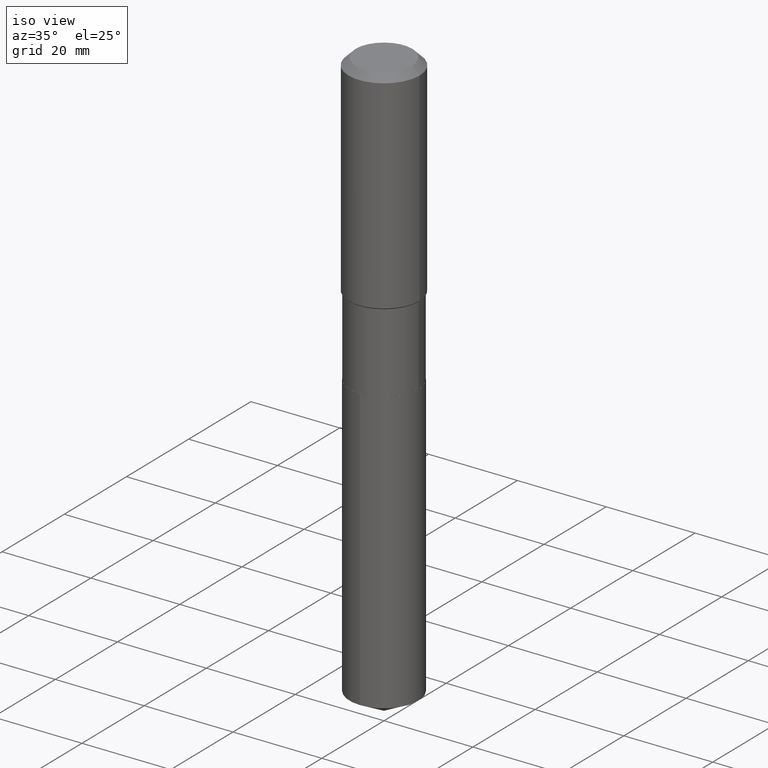
[diagram: clean part render]
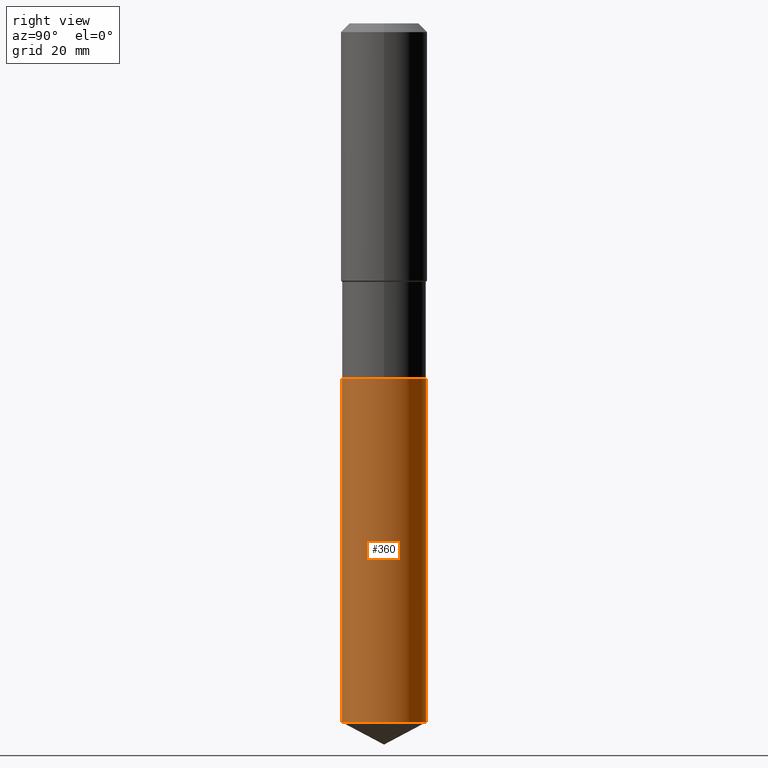
[diagram: tour spotlight — one face highlighted and labeled with its STEP entity id]
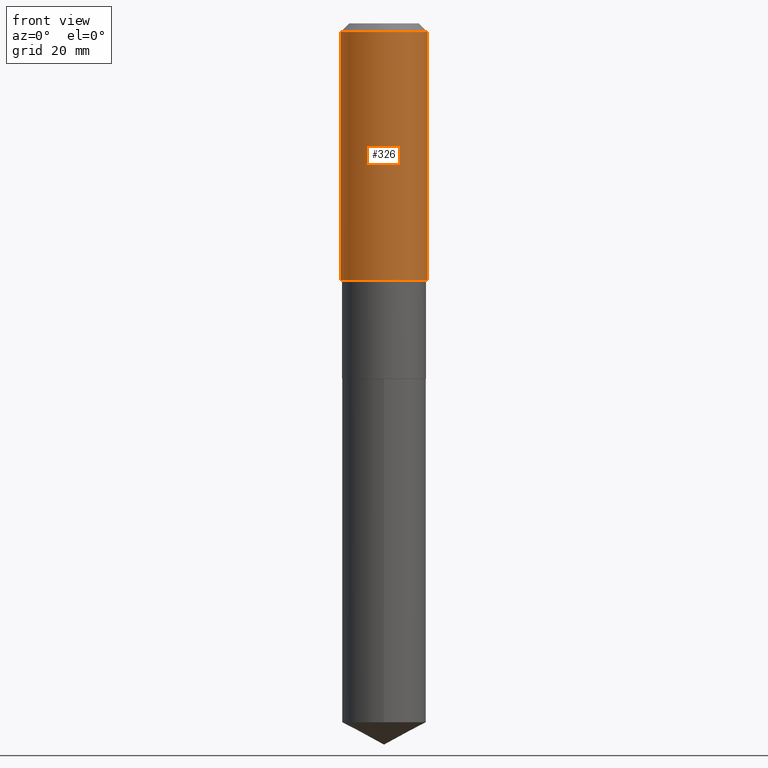
[diagram: tour spotlight — one face highlighted and labeled with its STEP entity id]
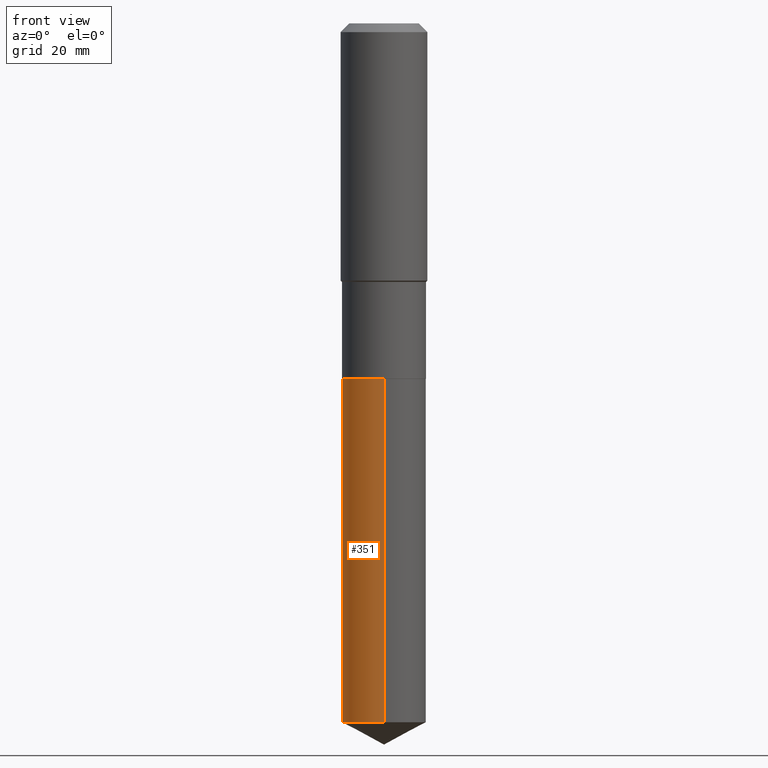
[diagram: tour spotlight — one face highlighted and labeled with its STEP entity id]
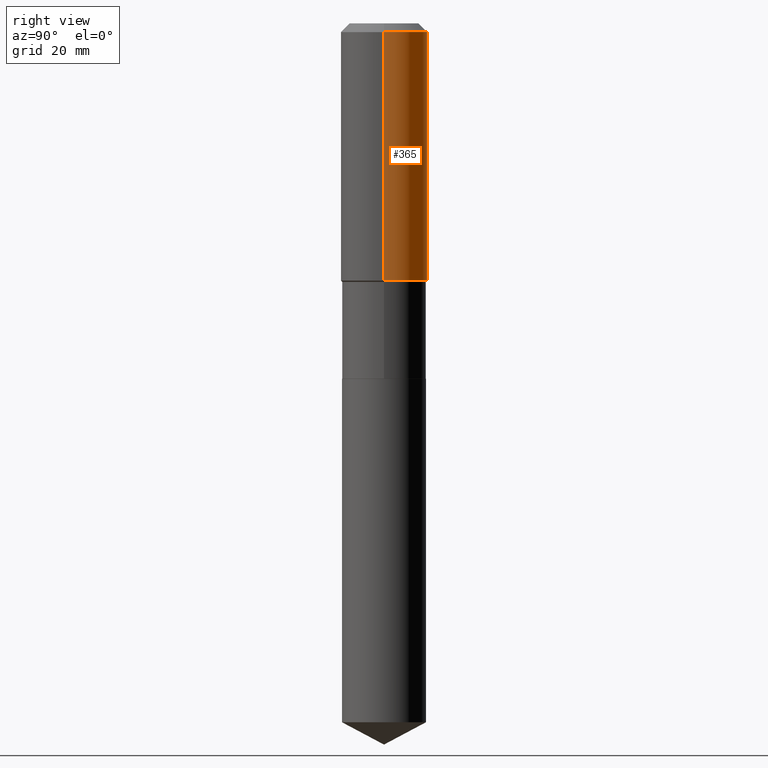
[diagram: tour spotlight — one face highlighted and labeled with its STEP entity id]
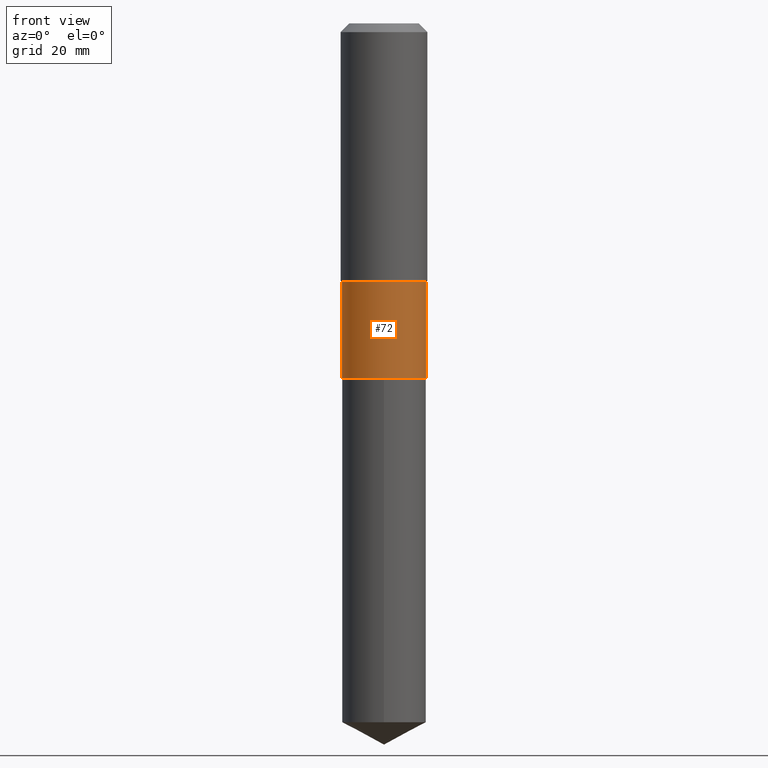
[diagram: tour spotlight — one face highlighted and labeled with its STEP entity id]
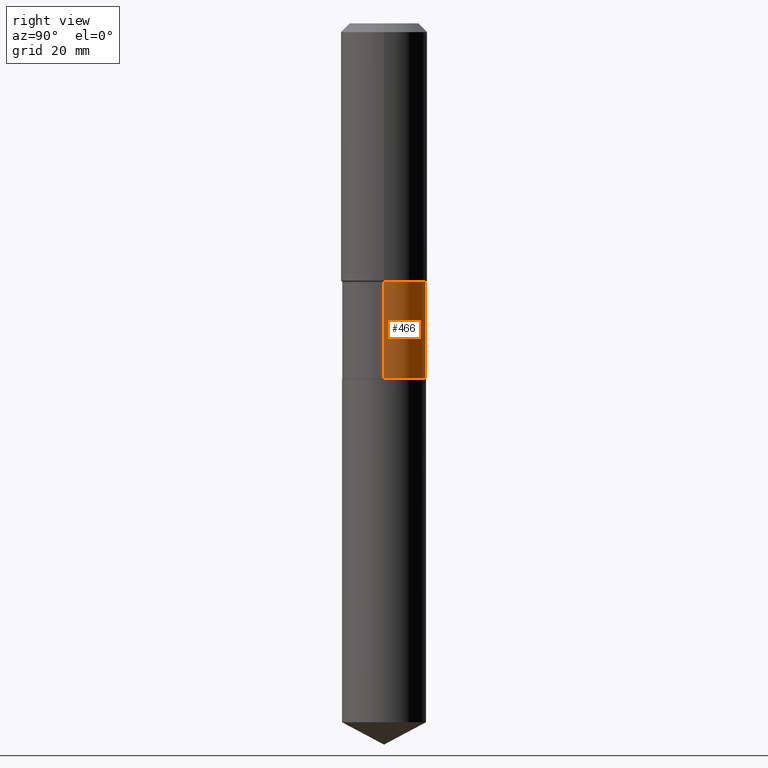
[diagram: tour spotlight — one face highlighted and labeled with its STEP entity id]
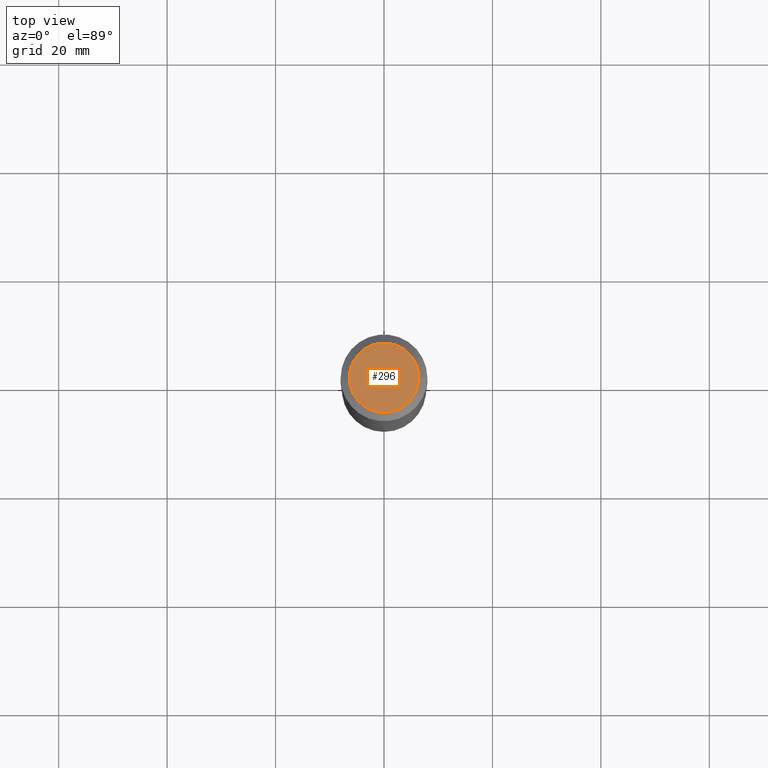
[diagram: tour spotlight — one face highlighted and labeled with its STEP entity id]
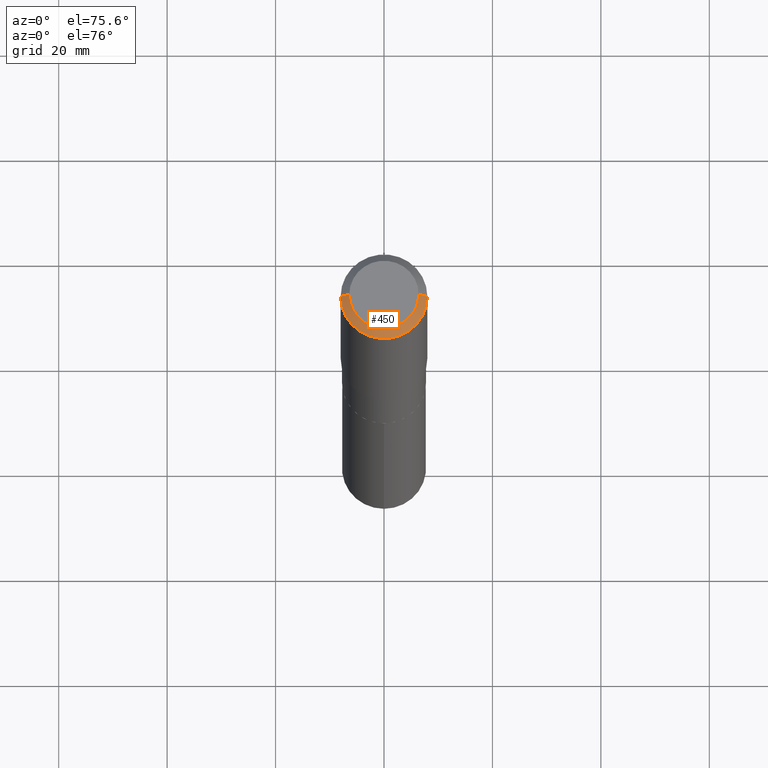
[diagram: tour spotlight — one face highlighted and labeled with its STEP entity id]
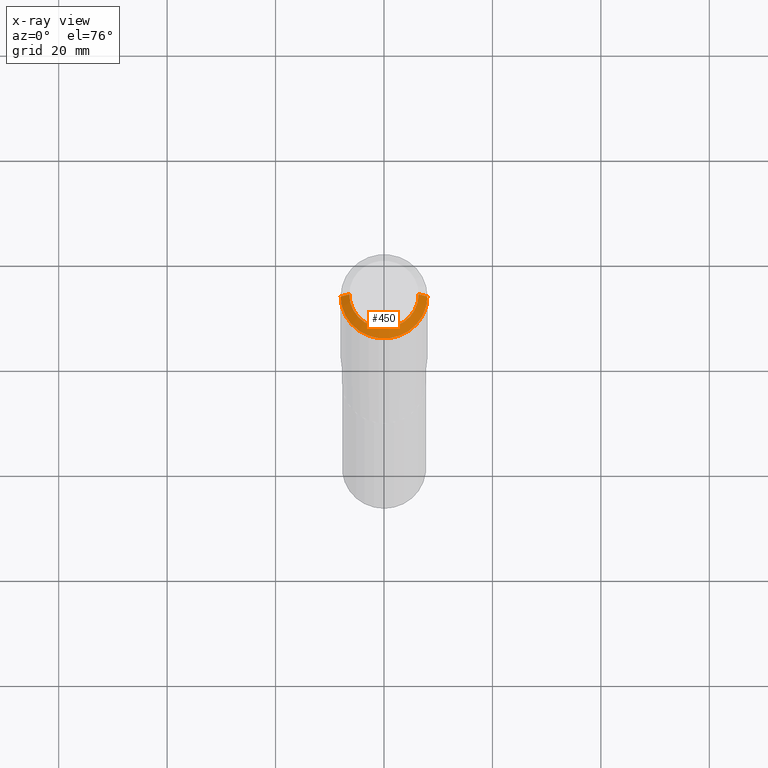
[diagram: x-ray of the same camera — body ghosted, this tour face saturated]
A machine part: a face-by-face anatomy tour. The part has 17 B-rep faces; the first image is the clean iso view, then the 8 largest visible faces are spotlighted one at a time (largest first), each with its STEP entity span.

Face 1 — right view, entity #360. In plain terms, the highlighted cylindrical surface (partial cylindrical patch) has radius 7.7495 mm, axis along (-0, 0, 1).
Definition (entity closure, byte-faithful):
#30 = ORIENTED_EDGE ( 'NONE', *, *, #319, .T. ) ;
#54 = ORIENTED_EDGE ( 'NONE', *, *, #385, .F. ) ;
#59 = CARTESIAN_POINT ( 'NONE',  ( 2.167865886804128256E-15, 0.3050999999999909895, -2.578700000000000880 ) ) ;
#66 = VECTOR ( 'NONE', #101, 39.37007874015748143 ) ;
#67 = VERTEX_POINT ( 'NONE', #286 ) ;
#101 = DIRECTION ( 'NONE',  ( -2.445282767120044128E-29, 3.491747757373043881E-15, 1.000000000000000000 ) ) ;
#119 = EDGE_CURVE ( 'NONE', #67, #277, #133, .T. ) ;
#133 = LINE ( 'NONE', #59, #456 ) ;
#148 = CARTESIAN_POINT ( 'NONE',  ( 2.167865886804189787E-15, 0.3050999999999909895, -2.578700000000000880 ) ) ;
#154 = ORIENTED_EDGE ( 'NONE', *, *, #262, .F. ) ;
#159 = CARTESIAN_POINT ( 'NONE',  ( 6.306130410509611898E-29, -9.003482928474819860E-15, -2.578699999999999992 ) ) ;
#164 = FACE_OUTER_BOUND ( 'NONE', #422, .T. ) ;
#175 = AXIS2_PLACEMENT_3D ( 'NONE', #469, #317, #423 ) ;
#179 = LINE ( 'NONE', #451, #66 ) ;
#195 = DIRECTION ( 'NONE',  ( -2.445282767120044128E-29, 3.491747757373043881E-15, 1.000000000000000000 ) ) ;
#230 = ORIENTED_EDGE ( 'NONE', *, *, #119, .T. ) ;
#234 = CARTESIAN_POINT ( 'NONE',  ( 6.306130410509611898E-29, -9.003482928474819860E-15, -2.578699999999999992 ) ) ;
#252 = CIRCLE ( 'NONE', #175, 0.3050999999999999268 ) ;
#262 = EDGE_CURVE ( 'NONE', #468, #419, #179, .T. ) ;
#271 = CARTESIAN_POINT ( 'NONE',  ( -2.130501912962016366E-15, -0.3051000000000089751, -2.578699999999999104 ) ) ;
#277 = VERTEX_POINT ( 'NONE', #148 ) ;
#286 = CARTESIAN_POINT ( 'NONE',  ( 2.167865886804188604E-15, 0.3050999999999821632, -5.073975452400085295 ) ) ;
#312 = DIRECTION ( 'NONE',  ( -6.982962677686265133E-15, -1.000000000000000000, 3.581577179500837048E-15 ) ) ;
#317 = DIRECTION ( 'NONE',  ( -2.445282767120044128E-29, 3.491747757373043881E-15, 1.000000000000000000 ) ) ;
#319 = EDGE_CURVE ( 'NONE', #468, #67, #252, .T. ) ;
#360 = ADVANCED_FACE ( 'NONE', ( #164 ), #390, .T. ) ;
#384 = DIRECTION ( 'NONE',  ( -6.982962677686265133E-15, -1.000000000000000000, 3.581577179500837048E-15 ) ) ;
#385 = EDGE_CURVE ( 'NONE', #419, #277, #387, .T. ) ;
#387 = CIRCLE ( 'NONE', #427, 0.3050999999999999823 ) ;
#390 = CYLINDRICAL_SURFACE ( 'NONE', #487, 0.3050999999999999823 ) ;
#419 = VERTEX_POINT ( 'NONE', #271 ) ;
#422 = EDGE_LOOP ( 'NONE', ( #30, #230, #54, #154 ) ) ;
#423 = DIRECTION ( 'NONE',  ( -6.982962677686265133E-15, -1.000000000000000000, 3.581577179500837836E-15 ) ) ;
#427 = AXIS2_PLACEMENT_3D ( 'NONE', #234, #465, #384 ) ;
#451 = CARTESIAN_POINT ( 'NONE',  ( -2.130501912962016366E-15, -0.3051000000000089751, -2.578699999999999104 ) ) ;
#456 = VECTOR ( 'NONE', #472, 39.37007874015748143 ) ;
#465 = DIRECTION ( 'NONE',  ( -2.445282767120044128E-29, 3.491747757373043881E-15, 1.000000000000000000 ) ) ;
#468 = VERTEX_POINT ( 'NONE', #483 ) ;
#469 = CARTESIAN_POINT ( 'NONE',  ( 1.240778447348120956E-28, -1.771635539342082338E-14, -5.073975452400084407 ) ) ;
#472 = DIRECTION ( 'NONE',  ( -2.445282767120044128E-29, 3.491747757373043881E-15, 1.000000000000000000 ) ) ;
#483 = CARTESIAN_POINT ( 'NONE',  ( -2.130501912961955229E-15, -0.3051000000000176349, -5.073975452400083519 ) ) ;
#487 = AXIS2_PLACEMENT_3D ( 'NONE', #159, #195, #312 ) ;

Face 2 — front view, entity #326. In plain terms, the highlighted cylindrical surface (partial cylindrical patch) has radius 7.9997 mm, axis along (-0, 0, 1).
Definition (entity closure, byte-faithful):
#31 = CARTESIAN_POINT ( 'NONE',  ( -0.3149500000000001743, 2.237854346276436774E-15, -1.549218606675783237E-29 ) ) ;
#39 = AXIS2_PLACEMENT_3D ( 'NONE', #314, #357, #155 ) ;
#60 = CARTESIAN_POINT ( 'NONE',  ( 1.540400801016026329E-30, -2.199284095337310135E-16, -0.06299000000000036514 ) ) ;
#61 = AXIS2_PLACEMENT_3D ( 'NONE', #60, #214, #380 ) ;
#79 = CARTESIAN_POINT ( 'NONE',  ( -0.3149500000000002298, -4.281265035544543144E-15, -1.867150000000000087 ) ) ;
#80 = ORIENTED_EDGE ( 'NONE', *, *, #228, .T. ) ;
#114 = CARTESIAN_POINT ( 'NONE',  ( 0.3149500000000001743, -2.199284095337290660E-15, 1.535751875536930690E-29 ) ) ;
#121 = VERTEX_POINT ( 'NONE', #248 ) ;
#123 = CYLINDRICAL_SURFACE ( 'NONE', #39, 0.3149500000000001743 ) ;
#144 = VECTOR ( 'NONE', #485, 39.37007874015748143 ) ;
#150 = CARTESIAN_POINT ( 'NONE',  ( 4.566057081468578396E-29, -6.519119381820979918E-15, -1.867150000000000087 ) ) ;
#155 = DIRECTION ( 'NONE',  ( 1.000000000000000000, -6.982962677686265922E-15, 4.876176775795935232E-29 ) ) ;
#167 = AXIS2_PLACEMENT_3D ( 'NONE', #150, #261, #180 ) ;
#180 = DIRECTION ( 'NONE',  ( 1.000000000000000000, -6.982962677686268288E-15, 0.000000000000000000 ) ) ;
#189 = FACE_OUTER_BOUND ( 'NONE', #309, .T. ) ;
#207 = ORIENTED_EDGE ( 'NONE', *, *, #255, .F. ) ;
#214 = DIRECTION ( 'NONE',  ( -2.445468806185136597E-29, 3.491481338843145583E-15, 1.000000000000000000 ) ) ;
#221 = ORIENTED_EDGE ( 'NONE', *, *, #268, .F. ) ;
#228 = EDGE_CURVE ( 'NONE', #340, #294, #264, .T. ) ;
#231 = LINE ( 'NONE', #114, #464 ) ;
#237 = DIRECTION ( 'NONE',  ( -2.445468806185136877E-29, 3.491481338843145188E-15, 1.000000000000000000 ) ) ;
#248 = CARTESIAN_POINT ( 'NONE',  ( -0.3149500000000000077, -1.131669549400918704E-15, -0.06299000000000036514 ) ) ;
#255 = EDGE_CURVE ( 'NONE', #121, #383, #471, .T. ) ;
#261 = DIRECTION ( 'NONE',  ( -2.445468806185136597E-29, 3.491481338843145583E-15, 1.000000000000000000 ) ) ;
#264 = CIRCLE ( 'NONE', #167, 0.3149500000000002298 ) ;
#265 = LINE ( 'NONE', #31, #144 ) ;
#268 = EDGE_CURVE ( 'NONE', #340, #121, #265, .T. ) ;
#294 = VERTEX_POINT ( 'NONE', #301 ) ;
#301 = CARTESIAN_POINT ( 'NONE',  ( 0.3149500000000002298, -8.718403477158270577E-15, -1.867150000000000087 ) ) ;
#309 = EDGE_LOOP ( 'NONE', ( #221, #80, #470, #207 ) ) ;
#314 = CARTESIAN_POINT ( 'NONE',  ( 0.000000000000000000, 0.000000000000000000, 0.000000000000000000 ) ) ;
#326 = ADVANCED_FACE ( 'NONE', ( #189 ), #123, .T. ) ;
#340 = VERTEX_POINT ( 'NONE', #79 ) ;
#357 = DIRECTION ( 'NONE',  ( -2.445468806185136597E-29, 3.491481338843145583E-15, 1.000000000000000000 ) ) ;
#379 = EDGE_CURVE ( 'NONE', #294, #383, #231, .T. ) ;
#380 = DIRECTION ( 'NONE',  ( 1.000000000000000000, -6.982962677686266711E-15, 0.000000000000000000 ) ) ;
#383 = VERTEX_POINT ( 'NONE', #393 ) ;
#393 = CARTESIAN_POINT ( 'NONE',  ( 0.3149500000000000077, -2.419212504871020909E-15, -0.06299000000000036514 ) ) ;
#464 = VECTOR ( 'NONE', #237, 39.37007874015748143 ) ;
#470 = ORIENTED_EDGE ( 'NONE', *, *, #379, .T. ) ;
#471 = CIRCLE ( 'NONE', #61, 0.3149500000000000077 ) ;
#485 = DIRECTION ( 'NONE',  ( -2.445468806185136877E-29, 3.491481338843145188E-15, 1.000000000000000000 ) ) ;

Face 3 — front view, entity #351. In plain terms, the highlighted cylindrical surface (partial cylindrical patch) has radius 7.7495 mm, axis along (-0, 0, 1).
Definition (entity closure, byte-faithful):
#6 = CARTESIAN_POINT ( 'NONE',  ( 6.306130410509611898E-29, -9.003482928474819860E-15, -2.578699999999999992 ) ) ;
#7 = ORIENTED_EDGE ( 'NONE', *, *, #178, .T. ) ;
#10 = DIRECTION ( 'NONE',  ( -6.982962677686265133E-15, -1.000000000000000000, 3.581577179500837048E-15 ) ) ;
#13 = FACE_OUTER_BOUND ( 'NONE', #62, .T. ) ;
#14 = ORIENTED_EDGE ( 'NONE', *, *, #262, .T. ) ;
#40 = DIRECTION ( 'NONE',  ( -6.982962677686265133E-15, -1.000000000000000000, 3.581577179500837048E-15 ) ) ;
#43 = DIRECTION ( 'NONE',  ( -2.445282767120044128E-29, 3.491747757373043881E-15, 1.000000000000000000 ) ) ;
#52 = CIRCLE ( 'NONE', #420, 0.3050999999999999268 ) ;
#59 = CARTESIAN_POINT ( 'NONE',  ( 2.167865886804128256E-15, 0.3050999999999909895, -2.578700000000000880 ) ) ;
#62 = EDGE_LOOP ( 'NONE', ( #83, #7, #14, #270 ) ) ;
#65 = DIRECTION ( 'NONE',  ( -6.982962677686265133E-15, -1.000000000000000000, 3.581577179500837836E-15 ) ) ;
#66 = VECTOR ( 'NONE', #101, 39.37007874015748143 ) ;
#67 = VERTEX_POINT ( 'NONE', #286 ) ;
#69 = DIRECTION ( 'NONE',  ( -2.445282767120044128E-29, 3.491747757373043881E-15, 1.000000000000000000 ) ) ;
#71 = CARTESIAN_POINT ( 'NONE',  ( 6.306130410509611898E-29, -9.003482928474819860E-15, -2.578699999999999992 ) ) ;
#83 = ORIENTED_EDGE ( 'NONE', *, *, #119, .F. ) ;
#101 = DIRECTION ( 'NONE',  ( -2.445282767120044128E-29, 3.491747757373043881E-15, 1.000000000000000000 ) ) ;
#119 = EDGE_CURVE ( 'NONE', #67, #277, #133, .T. ) ;
#133 = LINE ( 'NONE', #59, #456 ) ;
#148 = CARTESIAN_POINT ( 'NONE',  ( 2.167865886804189787E-15, 0.3050999999999909895, -2.578700000000000880 ) ) ;
#158 = DIRECTION ( 'NONE',  ( -2.445282767120044128E-29, 3.491747757373043881E-15, 1.000000000000000000 ) ) ;
#178 = EDGE_CURVE ( 'NONE', #67, #468, #52, .T. ) ;
#179 = LINE ( 'NONE', #451, #66 ) ;
#236 = CYLINDRICAL_SURFACE ( 'NONE', #322, 0.3050999999999999823 ) ;
#262 = EDGE_CURVE ( 'NONE', #468, #419, #179, .T. ) ;
#270 = ORIENTED_EDGE ( 'NONE', *, *, #341, .F. ) ;
#271 = CARTESIAN_POINT ( 'NONE',  ( -2.130501912962016366E-15, -0.3051000000000089751, -2.578699999999999104 ) ) ;
#277 = VERTEX_POINT ( 'NONE', #148 ) ;
#286 = CARTESIAN_POINT ( 'NONE',  ( 2.167865886804188604E-15, 0.3050999999999821632, -5.073975452400085295 ) ) ;
#299 = CARTESIAN_POINT ( 'NONE',  ( 1.240778447348120956E-28, -1.771635539342082338E-14, -5.073975452400084407 ) ) ;
#322 = AXIS2_PLACEMENT_3D ( 'NONE', #71, #43, #10 ) ;
#341 = EDGE_CURVE ( 'NONE', #277, #419, #458, .T. ) ;
#351 = ADVANCED_FACE ( 'NONE', ( #13 ), #236, .T. ) ;
#419 = VERTEX_POINT ( 'NONE', #271 ) ;
#420 = AXIS2_PLACEMENT_3D ( 'NONE', #299, #69, #65 ) ;
#451 = CARTESIAN_POINT ( 'NONE',  ( -2.130501912962016366E-15, -0.3051000000000089751, -2.578699999999999104 ) ) ;
#456 = VECTOR ( 'NONE', #472, 39.37007874015748143 ) ;
#458 = CIRCLE ( 'NONE', #488, 0.3050999999999999823 ) ;
#468 = VERTEX_POINT ( 'NONE', #483 ) ;
#472 = DIRECTION ( 'NONE',  ( -2.445282767120044128E-29, 3.491747757373043881E-15, 1.000000000000000000 ) ) ;
#483 = CARTESIAN_POINT ( 'NONE',  ( -2.130501912961955229E-15, -0.3051000000000176349, -5.073975452400083519 ) ) ;
#488 = AXIS2_PLACEMENT_3D ( 'NONE', #6, #158, #40 ) ;

Face 4 — right view, entity #365. In plain terms, the highlighted cylindrical surface (partial cylindrical patch) has radius 7.9997 mm, axis along (-0, 0, 1).
Definition (entity closure, byte-faithful):
#2 = ORIENTED_EDGE ( 'NONE', *, *, #379, .F. ) ;
#19 = CIRCLE ( 'NONE', #136, 0.3149500000000000077 ) ;
#27 = AXIS2_PLACEMENT_3D ( 'NONE', #120, #432, #229 ) ;
#31 = CARTESIAN_POINT ( 'NONE',  ( -0.3149500000000001743, 2.237854346276436774E-15, -1.549218606675783237E-29 ) ) ;
#63 = DIRECTION ( 'NONE',  ( -2.445468806185136597E-29, 3.491481338843145583E-15, 1.000000000000000000 ) ) ;
#79 = CARTESIAN_POINT ( 'NONE',  ( -0.3149500000000002298, -4.281265035544543144E-15, -1.867150000000000087 ) ) ;
#102 = EDGE_LOOP ( 'NONE', ( #186, #181, #305, #2 ) ) ;
#114 = CARTESIAN_POINT ( 'NONE',  ( 0.3149500000000001743, -2.199284095337290660E-15, 1.535751875536930690E-29 ) ) ;
#115 = FACE_OUTER_BOUND ( 'NONE', #102, .T. ) ;
#120 = CARTESIAN_POINT ( 'NONE',  ( 0.000000000000000000, 0.000000000000000000, 0.000000000000000000 ) ) ;
#121 = VERTEX_POINT ( 'NONE', #248 ) ;
#125 = CIRCLE ( 'NONE', #247, 0.3149500000000002298 ) ;
#136 = AXIS2_PLACEMENT_3D ( 'NONE', #377, #63, #412 ) ;
#144 = VECTOR ( 'NONE', #485, 39.37007874015748143 ) ;
#157 = EDGE_CURVE ( 'NONE', #294, #340, #125, .T. ) ;
#161 = CYLINDRICAL_SURFACE ( 'NONE', #27, 0.3149500000000001743 ) ;
#162 = EDGE_CURVE ( 'NONE', #383, #121, #19, .T. ) ;
#181 = ORIENTED_EDGE ( 'NONE', *, *, #268, .T. ) ;
#186 = ORIENTED_EDGE ( 'NONE', *, *, #157, .T. ) ;
#220 = DIRECTION ( 'NONE',  ( -2.445468806185136597E-29, 3.491481338843145583E-15, 1.000000000000000000 ) ) ;
#229 = DIRECTION ( 'NONE',  ( 1.000000000000000000, -6.982962677686265922E-15, 4.876176775795935232E-29 ) ) ;
#231 = LINE ( 'NONE', #114, #464 ) ;
#237 = DIRECTION ( 'NONE',  ( -2.445468806185136877E-29, 3.491481338843145188E-15, 1.000000000000000000 ) ) ;
#247 = AXIS2_PLACEMENT_3D ( 'NONE', #414, #220, #453 ) ;
#248 = CARTESIAN_POINT ( 'NONE',  ( -0.3149500000000000077, -1.131669549400918704E-15, -0.06299000000000036514 ) ) ;
#265 = LINE ( 'NONE', #31, #144 ) ;
#268 = EDGE_CURVE ( 'NONE', #340, #121, #265, .T. ) ;
#294 = VERTEX_POINT ( 'NONE', #301 ) ;
#301 = CARTESIAN_POINT ( 'NONE',  ( 0.3149500000000002298, -8.718403477158270577E-15, -1.867150000000000087 ) ) ;
#305 = ORIENTED_EDGE ( 'NONE', *, *, #162, .F. ) ;
#340 = VERTEX_POINT ( 'NONE', #79 ) ;
#365 = ADVANCED_FACE ( 'NONE', ( #115 ), #161, .T. ) ;
#377 = CARTESIAN_POINT ( 'NONE',  ( 1.540400801016026329E-30, -2.199284095337310135E-16, -0.06299000000000036514 ) ) ;
#379 = EDGE_CURVE ( 'NONE', #294, #383, #231, .T. ) ;
#383 = VERTEX_POINT ( 'NONE', #393 ) ;
#393 = CARTESIAN_POINT ( 'NONE',  ( 0.3149500000000000077, -2.419212504871020909E-15, -0.06299000000000036514 ) ) ;
#412 = DIRECTION ( 'NONE',  ( 1.000000000000000000, -6.982962677686266711E-15, 0.000000000000000000 ) ) ;
#414 = CARTESIAN_POINT ( 'NONE',  ( 4.566057081468578396E-29, -6.519119381820979918E-15, -1.867150000000000087 ) ) ;
#432 = DIRECTION ( 'NONE',  ( -2.445468806185136597E-29, 3.491481338843145583E-15, 1.000000000000000000 ) ) ;
#453 = DIRECTION ( 'NONE',  ( 1.000000000000000000, -6.982962677686268288E-15, 0.000000000000000000 ) ) ;
#464 = VECTOR ( 'NONE', #237, 39.37007874015748143 ) ;
#485 = DIRECTION ( 'NONE',  ( -2.445468806185136877E-29, 3.491481338843145188E-15, 1.000000000000000000 ) ) ;

Face 5 — front view, entity #72. In plain terms, the highlighted cylindrical surface (partial cylindrical patch) has radius 7.7495 mm, axis along (-0, 0, 1).
Definition (entity closure, byte-faithful):
#5 = ORIENTED_EDGE ( 'NONE', *, *, #96, .F. ) ;
#15 = DIRECTION ( 'NONE',  ( 1.000000000000000000, -6.982962677686266711E-15, 0.000000000000000000 ) ) ;
#24 = DIRECTION ( 'NONE',  ( -2.445468806185136597E-29, 3.491481338843145583E-15, 1.000000000000000000 ) ) ;
#64 = CARTESIAN_POINT ( 'NONE',  ( -0.3050999999999999268, 2.167865886804065147E-15, -1.500767096036771338E-29 ) ) ;
#72 = ADVANCED_FACE ( 'NONE', ( #407 ), #371, .T. ) ;
#86 = VERTEX_POINT ( 'NONE', #327 ) ;
#92 = DIRECTION ( 'NONE',  ( -2.445468806185136597E-29, 3.491481338843145583E-15, 1.000000000000000000 ) ) ;
#96 = EDGE_CURVE ( 'NONE', #295, #202, #108, .T. ) ;
#104 = CARTESIAN_POINT ( 'NONE',  ( -0.3050999999999999268, -5.609757943602925997E-15, -1.877000000000000224 ) ) ;
#108 = CIRCLE ( 'NONE', #196, 0.3050999999999999268 ) ;
#116 = VECTOR ( 'NONE', #467, 39.37007874015748143 ) ;
#130 = EDGE_CURVE ( 'NONE', #263, #86, #213, .T. ) ;
#138 = CARTESIAN_POINT ( 'NONE',  ( 4.590144949209502325E-29, -6.553510473008584721E-15, -1.877000000000000224 ) ) ;
#156 = ORIENTED_EDGE ( 'NONE', *, *, #130, .T. ) ;
#171 = DIRECTION ( 'NONE',  ( 1.000000000000000000, -6.982962677686265133E-15, 4.876176775795935793E-29 ) ) ;
#182 = EDGE_CURVE ( 'NONE', #263, #295, #258, .T. ) ;
#192 = ORIENTED_EDGE ( 'NONE', *, *, #415, .T. ) ;
#196 = AXIS2_PLACEMENT_3D ( 'NONE', #138, #24, #15 ) ;
#197 = VECTOR ( 'NONE', #417, 39.37007874015748143 ) ;
#202 = VERTEX_POINT ( 'NONE', #373 ) ;
#204 = AXIS2_PLACEMENT_3D ( 'NONE', #404, #369, #284 ) ;
#209 = CARTESIAN_POINT ( 'NONE',  ( 0.000000000000000000, 0.000000000000000000, 0.000000000000000000 ) ) ;
#213 = CIRCLE ( 'NONE', #204, 0.3050999999999999268 ) ;
#258 = LINE ( 'NONE', #64, #197 ) ;
#263 = VERTEX_POINT ( 'NONE', #333 ) ;
#284 = DIRECTION ( 'NONE',  ( 1.000000000000000000, -6.982962677686269077E-15, 0.000000000000000000 ) ) ;
#295 = VERTEX_POINT ( 'NONE', #104 ) ;
#310 = LINE ( 'NONE', #462, #116 ) ;
#327 = CARTESIAN_POINT ( 'NONE',  ( 0.3050999999999999268, -1.113223910076747783E-14, -2.578199999999999825 ) ) ;
#333 = CARTESIAN_POINT ( 'NONE',  ( -0.3050999999999999823, -5.609757943602925208E-15, -2.578199999999999825 ) ) ;
#369 = DIRECTION ( 'NONE',  ( -2.445468806185136597E-29, 3.491481338843145583E-15, 1.000000000000000000 ) ) ;
#371 = CYLINDRICAL_SURFACE ( 'NONE', #418, 0.3050999999999999268 ) ;
#373 = CARTESIAN_POINT ( 'NONE',  ( 0.3050999999999999268, -8.684012385970664985E-15, -1.877000000000000224 ) ) ;
#404 = CARTESIAN_POINT ( 'NONE',  ( 6.304907676106519097E-29, -9.001737187805397567E-15, -2.578199999999999825 ) ) ;
#407 = FACE_OUTER_BOUND ( 'NONE', #413, .T. ) ;
#413 = EDGE_LOOP ( 'NONE', ( #457, #156, #192, #5 ) ) ;
#415 = EDGE_CURVE ( 'NONE', #86, #202, #310, .T. ) ;
#417 = DIRECTION ( 'NONE',  ( -2.445468806185136877E-29, 3.491481338843145188E-15, 1.000000000000000000 ) ) ;
#418 = AXIS2_PLACEMENT_3D ( 'NONE', #209, #92, #171 ) ;
#457 = ORIENTED_EDGE ( 'NONE', *, *, #182, .F. ) ;
#462 = CARTESIAN_POINT ( 'NONE',  ( 0.3050999999999999268, -2.130501912962079080E-15, 1.487721534295339594E-29 ) ) ;
#467 = DIRECTION ( 'NONE',  ( -2.445468806185136877E-29, 3.491481338843145188E-15, 1.000000000000000000 ) ) ;

Face 6 — right view, entity #466. In plain terms, the highlighted cylindrical surface (partial cylindrical patch) has radius 7.7495 mm, axis along (-0, 0, 1).
Definition (entity closure, byte-faithful):
#12 = CARTESIAN_POINT ( 'NONE',  ( 6.304907676106519097E-29, -9.001737187805397567E-15, -2.578199999999999825 ) ) ;
#42 = DIRECTION ( 'NONE',  ( 1.000000000000000000, -6.982962677686266711E-15, 0.000000000000000000 ) ) ;
#64 = CARTESIAN_POINT ( 'NONE',  ( -0.3050999999999999268, 2.167865886804065147E-15, -1.500767096036771338E-29 ) ) ;
#70 = EDGE_LOOP ( 'NONE', ( #73, #376, #302, #441 ) ) ;
#73 = ORIENTED_EDGE ( 'NONE', *, *, #447, .T. ) ;
#86 = VERTEX_POINT ( 'NONE', #327 ) ;
#89 = CIRCLE ( 'NONE', #378, 0.3050999999999999268 ) ;
#90 = DIRECTION ( 'NONE',  ( -2.445468806185136597E-29, 3.491481338843145583E-15, 1.000000000000000000 ) ) ;
#104 = CARTESIAN_POINT ( 'NONE',  ( -0.3050999999999999268, -5.609757943602925997E-15, -1.877000000000000224 ) ) ;
#116 = VECTOR ( 'NONE', #467, 39.37007874015748143 ) ;
#118 = DIRECTION ( 'NONE',  ( 1.000000000000000000, -6.982962677686269077E-15, 0.000000000000000000 ) ) ;
#129 = CYLINDRICAL_SURFACE ( 'NONE', #350, 0.3050999999999999268 ) ;
#182 = EDGE_CURVE ( 'NONE', #263, #295, #258, .T. ) ;
#187 = DIRECTION ( 'NONE',  ( -2.445468806185136597E-29, 3.491481338843145583E-15, 1.000000000000000000 ) ) ;
#197 = VECTOR ( 'NONE', #417, 39.37007874015748143 ) ;
#202 = VERTEX_POINT ( 'NONE', #373 ) ;
#258 = LINE ( 'NONE', #64, #197 ) ;
#263 = VERTEX_POINT ( 'NONE', #333 ) ;
#276 = DIRECTION ( 'NONE',  ( -2.445468806185136597E-29, 3.491481338843145583E-15, 1.000000000000000000 ) ) ;
#285 = DIRECTION ( 'NONE',  ( 1.000000000000000000, -6.982962677686265133E-15, 4.876176775795935793E-29 ) ) ;
#295 = VERTEX_POINT ( 'NONE', #104 ) ;
#298 = EDGE_CURVE ( 'NONE', #202, #295, #394, .T. ) ;
#302 = ORIENTED_EDGE ( 'NONE', *, *, #298, .F. ) ;
#310 = LINE ( 'NONE', #462, #116 ) ;
#327 = CARTESIAN_POINT ( 'NONE',  ( 0.3050999999999999268, -1.113223910076747783E-14, -2.578199999999999825 ) ) ;
#331 = FACE_OUTER_BOUND ( 'NONE', #70, .T. ) ;
#333 = CARTESIAN_POINT ( 'NONE',  ( -0.3050999999999999823, -5.609757943602925208E-15, -2.578199999999999825 ) ) ;
#350 = AXIS2_PLACEMENT_3D ( 'NONE', #475, #90, #285 ) ;
#373 = CARTESIAN_POINT ( 'NONE',  ( 0.3050999999999999268, -8.684012385970664985E-15, -1.877000000000000224 ) ) ;
#376 = ORIENTED_EDGE ( 'NONE', *, *, #182, .T. ) ;
#378 = AXIS2_PLACEMENT_3D ( 'NONE', #12, #276, #118 ) ;
#382 = CARTESIAN_POINT ( 'NONE',  ( 4.590144949209502325E-29, -6.553510473008584721E-15, -1.877000000000000224 ) ) ;
#394 = CIRCLE ( 'NONE', #449, 0.3050999999999999268 ) ;
#415 = EDGE_CURVE ( 'NONE', #86, #202, #310, .T. ) ;
#417 = DIRECTION ( 'NONE',  ( -2.445468806185136877E-29, 3.491481338843145188E-15, 1.000000000000000000 ) ) ;
#441 = ORIENTED_EDGE ( 'NONE', *, *, #415, .F. ) ;
#447 = EDGE_CURVE ( 'NONE', #86, #263, #89, .T. ) ;
#449 = AXIS2_PLACEMENT_3D ( 'NONE', #382, #187, #42 ) ;
#462 = CARTESIAN_POINT ( 'NONE',  ( 0.3050999999999999268, -2.130501912962079080E-15, 1.487721534295339594E-29 ) ) ;
#466 = ADVANCED_FACE ( 'NONE', ( #331 ), #129, .T. ) ;
#467 = DIRECTION ( 'NONE',  ( -2.445468806185136877E-29, 3.491481338843145188E-15, 1.000000000000000000 ) ) ;
#475 = CARTESIAN_POINT ( 'NONE',  ( 0.000000000000000000, 0.000000000000000000, 0.000000000000000000 ) ) ;

Face 7 — top view, entity #296. In plain terms, the highlighted planar face has unit normal (0, -0, -1).
Definition (entity closure, byte-faithful):
#1 = PLANE ( 'NONE',  #348 ) ;
#26 = DIRECTION ( 'NONE',  ( -2.445468806185136597E-29, 3.491481338843145583E-15, 1.000000000000000000 ) ) ;
#78 = CARTESIAN_POINT ( 'NONE',  ( 0.2519600000000000173, -2.054606664725195058E-15, 3.855188123729206640E-18 ) ) ;
#85 = DIRECTION ( 'NONE',  ( 1.000000000000000000, -6.982962677686266711E-15, 4.876115136096691995E-29 ) ) ;
#87 = EDGE_CURVE ( 'NONE', #110, #358, #288, .T. ) ;
#110 = VERTEX_POINT ( 'NONE', #437 ) ;
#145 = EDGE_CURVE ( 'NONE', #358, #110, #307, .T. ) ;
#152 = AXIS2_PLACEMENT_3D ( 'NONE', #246, #335, #256 ) ;
#185 = FACE_OUTER_BOUND ( 'NONE', #386, .T. ) ;
#212 = AXIS2_PLACEMENT_3D ( 'NONE', #359, #26, #85 ) ;
#225 = ORIENTED_EDGE ( 'NONE', *, *, #145, .T. ) ;
#246 = CARTESIAN_POINT ( 'NONE',  ( -9.427742298522569579E-47, 1.346031739168368629E-32, 3.855188123715871501E-18 ) ) ;
#256 = DIRECTION ( 'NONE',  ( 1.000000000000000000, -6.982962677686266711E-15, 4.876115136096691995E-29 ) ) ;
#288 = CIRCLE ( 'NONE', #212, 0.2519600000000000173 ) ;
#296 = ADVANCED_FACE ( 'NONE', ( #185 ), #1, .F. ) ;
#303 = DIRECTION ( 'NONE',  ( 2.438088387897960049E-29, -3.491481338843145188E-15, -1.000000000000000000 ) ) ;
#307 = CIRCLE ( 'NONE', #152, 0.2519600000000000173 ) ;
#332 = ORIENTED_EDGE ( 'NONE', *, *, #87, .T. ) ;
#335 = DIRECTION ( 'NONE',  ( -2.445468806185136597E-29, 3.491481338843145583E-15, 1.000000000000000000 ) ) ;
#345 = CARTESIAN_POINT ( 'NONE',  ( -4.713871149261284790E-47, 6.730158695841843144E-33, 1.927594061857935750E-18 ) ) ;
#348 = AXIS2_PLACEMENT_3D ( 'NONE', #345, #303, #421 ) ;
#358 = VERTEX_POINT ( 'NONE', #78 ) ;
#359 = CARTESIAN_POINT ( 'NONE',  ( -9.427742298522569579E-47, 1.346031739168368629E-32, 3.855188123715871501E-18 ) ) ;
#386 = EDGE_LOOP ( 'NONE', ( #332, #225 ) ) ;
#421 = DIRECTION ( 'NONE',  ( -1.000000000000000000, 6.982962677686265922E-15, -4.876176775795935793E-29 ) ) ;
#437 = CARTESIAN_POINT ( 'NONE',  ( -0.2519600000000000173, 1.869391481036695286E-15, 3.855188123703182704E-18 ) ) ;

Face 8 — auxiliary view, entity #450. An x-ray twin of the same camera follows (body ghosted, this face saturated) — the face is partly hidden behind the body. In plain terms, the highlighted conical surface has half-angle 45 deg.
Definition (entity closure, byte-faithful):
#11 = CONICAL_SURFACE ( 'NONE', #53, 0.3149500000000000077, 0.7853981633974452814 ) ;
#26 = DIRECTION ( 'NONE',  ( -2.445468806185136597E-29, 3.491481338843145583E-15, 1.000000000000000000 ) ) ;
#28 = CARTESIAN_POINT ( 'NONE',  ( -0.3149500000000000077, 1.979355685803558833E-15, -0.06299000000000036514 ) ) ;
#49 = EDGE_LOOP ( 'NONE', ( #395, #446, #278, #251 ) ) ;
#53 = AXIS2_PLACEMENT_3D ( 'NONE', #354, #275, #193 ) ;
#56 = EDGE_CURVE ( 'NONE', #358, #383, #476, .T. ) ;
#60 = CARTESIAN_POINT ( 'NONE',  ( 1.540400801016026329E-30, -2.199284095337310135E-16, -0.06299000000000036514 ) ) ;
#61 = AXIS2_PLACEMENT_3D ( 'NONE', #60, #214, #380 ) ;
#78 = CARTESIAN_POINT ( 'NONE',  ( 0.2519600000000000173, -2.054606664725195058E-15, 3.855188123729206640E-18 ) ) ;
#85 = DIRECTION ( 'NONE',  ( 1.000000000000000000, -6.982962677686266711E-15, 4.876115136096691995E-29 ) ) ;
#87 = EDGE_CURVE ( 'NONE', #110, #358, #288, .T. ) ;
#88 = VECTOR ( 'NONE', #200, 39.37007874015748143 ) ;
#94 = CARTESIAN_POINT ( 'NONE',  ( 0.3149500000000000077, -2.380642253931875190E-15, -0.06299000000000036514 ) ) ;
#110 = VERTEX_POINT ( 'NONE', #437 ) ;
#121 = VERTEX_POINT ( 'NONE', #248 ) ;
#143 = LINE ( 'NONE', #28, #289 ) ;
#193 = DIRECTION ( 'NONE',  ( -1.000000000000000000, 6.982962677686266711E-15, 0.000000000000000000 ) ) ;
#200 = DIRECTION ( 'NONE',  ( 0.7071067811865453523, -7.319954787623248157E-15, -0.7071067811865496822 ) ) ;
#212 = AXIS2_PLACEMENT_3D ( 'NONE', #359, #26, #85 ) ;
#214 = DIRECTION ( 'NONE',  ( -2.445468806185136597E-29, 3.491481338843145583E-15, 1.000000000000000000 ) ) ;
#243 = EDGE_CURVE ( 'NONE', #110, #121, #143, .T. ) ;
#248 = CARTESIAN_POINT ( 'NONE',  ( -0.3149500000000000077, -1.131669549400918704E-15, -0.06299000000000036514 ) ) ;
#251 = ORIENTED_EDGE ( 'NONE', *, *, #255, .T. ) ;
#255 = EDGE_CURVE ( 'NONE', #121, #383, #471, .T. ) ;
#275 = DIRECTION ( 'NONE',  ( 2.445468806185136597E-29, -3.491481338843145583E-15, -1.000000000000000000 ) ) ;
#278 = ORIENTED_EDGE ( 'NONE', *, *, #243, .T. ) ;
#288 = CIRCLE ( 'NONE', #212, 0.2519600000000000173 ) ;
#289 = VECTOR ( 'NONE', #342, 39.37007874015748143 ) ;
#342 = DIRECTION ( 'NONE',  ( -0.7071067811865453523, 2.468850131082234184E-15, -0.7071067811865496822 ) ) ;
#354 = CARTESIAN_POINT ( 'NONE',  ( 1.540400801016026329E-30, -2.199284095337310135E-16, -0.06299000000000036514 ) ) ;
#358 = VERTEX_POINT ( 'NONE', #78 ) ;
#359 = CARTESIAN_POINT ( 'NONE',  ( -9.427742298522569579E-47, 1.346031739168368629E-32, 3.855188123715871501E-18 ) ) ;
#380 = DIRECTION ( 'NONE',  ( 1.000000000000000000, -6.982962677686266711E-15, 0.000000000000000000 ) ) ;
#383 = VERTEX_POINT ( 'NONE', #393 ) ;
#388 = FACE_OUTER_BOUND ( 'NONE', #49, .T. ) ;
#393 = CARTESIAN_POINT ( 'NONE',  ( 0.3149500000000000077, -2.419212504871020909E-15, -0.06299000000000036514 ) ) ;
#395 = ORIENTED_EDGE ( 'NONE', *, *, #56, .F. ) ;
#437 = CARTESIAN_POINT ( 'NONE',  ( -0.2519600000000000173, 1.869391481036695286E-15, 3.855188123703182704E-18 ) ) ;
#446 = ORIENTED_EDGE ( 'NONE', *, *, #87, .F. ) ;
#450 = ADVANCED_FACE ( 'NONE', ( #388 ), #11, .T. ) ;
#471 = CIRCLE ( 'NONE', #61, 0.3149500000000000077 ) ;
#476 = LINE ( 'NONE', #94, #88 ) ;